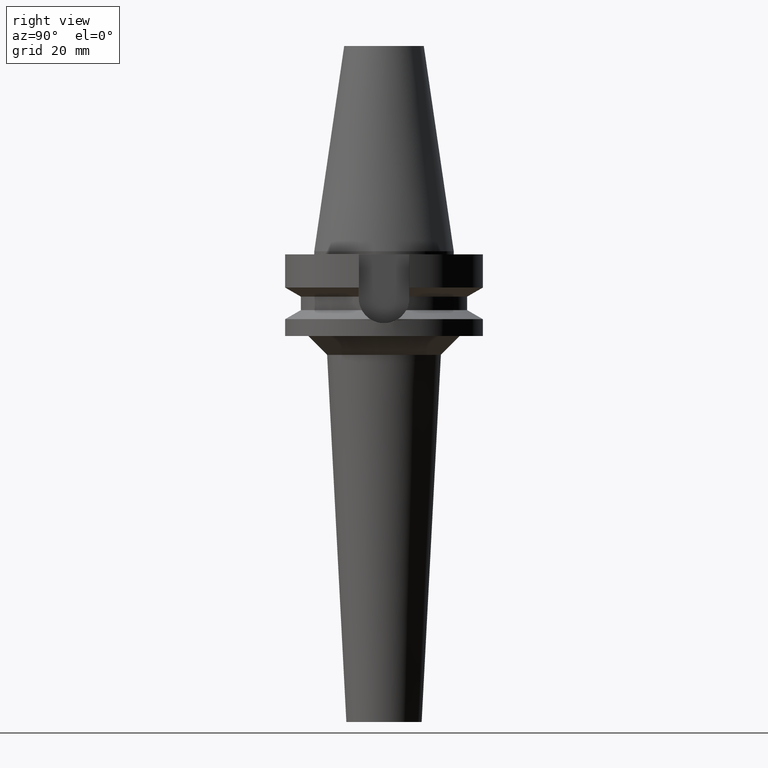
[diagram: clean part render]
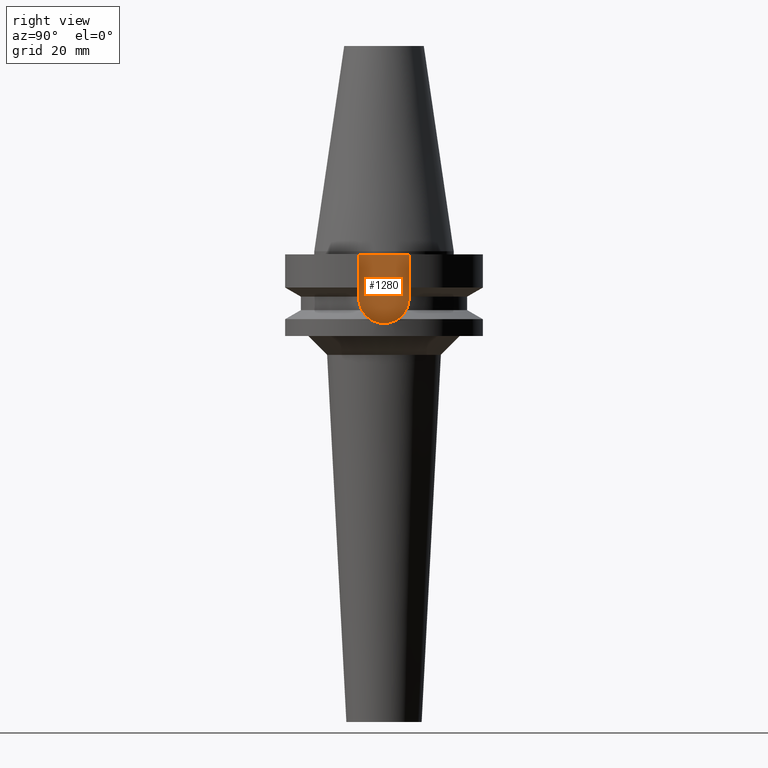
[diagram: same view with one face highlighted and labeled with its STEP entity id]
A machine part, right view. The second image highlights one B-rep face of the part: STEP entity #1280.
In plain terms, the highlighted planar face has unit normal (1, 0, 0).
Its self-contained STEP definition (entity closure, byte-faithful):
#124=DIRECTION('',(0.E0,-1.E0,0.E0));
#125=VECTOR('',#124,1.61E1);
#126=CARTESIAN_POINT('',(2.25E1,8.05E0,-1.E0));
#127=LINE('',#126,#125);
#307=DIRECTION('',(0.E0,0.E0,-1.E0));
#308=VECTOR('',#307,1.395E1);
#309=CARTESIAN_POINT('',(2.25E1,8.05E0,-1.E0));
#310=LINE('',#309,#308);
#314=CARTESIAN_POINT('',(2.25E1,0.E0,-1.495E1));
#315=DIRECTION('',(-1.E0,0.E0,0.E0));
#316=DIRECTION('',(0.E0,1.E0,0.E0));
#317=AXIS2_PLACEMENT_3D('',#314,#315,#316);
#322=CARTESIAN_POINT('',(2.25E1,0.E0,-1.495E1));
#323=DIRECTION('',(-1.E0,0.E0,0.E0));
#324=DIRECTION('',(0.E0,0.E0,-1.E0));
#325=AXIS2_PLACEMENT_3D('',#322,#323,#324);
#330=DIRECTION('',(0.E0,0.E0,1.E0));
#331=VECTOR('',#330,1.395E1);
#332=CARTESIAN_POINT('',(2.25E1,-8.05E0,-1.495E1));
#333=LINE('',#332,#331);
#977=CARTESIAN_POINT('',(2.25E1,-8.05E0,-1.495E1));
#978=VERTEX_POINT('',#977);
#979=CARTESIAN_POINT('',(2.25E1,0.E0,-2.3E1));
#980=VERTEX_POINT('',#979);
#981=CARTESIAN_POINT('',(2.25E1,8.05E0,-1.495E1));
#982=VERTEX_POINT('',#981);
#1029=CARTESIAN_POINT('',(2.25E1,8.05E0,-1.E0));
#1030=VERTEX_POINT('',#1029);
#1031=CARTESIAN_POINT('',(2.25E1,-8.05E0,-1.E0));
#1032=VERTEX_POINT('',#1031);
#1265=CARTESIAN_POINT('',(2.25E1,0.E0,0.E0));
#1266=DIRECTION('',(1.E0,0.E0,0.E0));
#1267=DIRECTION('',(0.E0,0.E0,-1.E0));
#1268=AXIS2_PLACEMENT_3D('',#1265,#1266,#1267);
#1269=PLANE('',#1268);
#1270=ORIENTED_EDGE('',*,*,#1142,.F.);
#1272=ORIENTED_EDGE('',*,*,#1271,.T.);
#1274=ORIENTED_EDGE('',*,*,#1273,.T.);
#1276=ORIENTED_EDGE('',*,*,#1275,.T.);
#1277=ORIENTED_EDGE('',*,*,#1258,.T.);
#1278=EDGE_LOOP('',(#1270,#1272,#1274,#1276,#1277));
#1279=FACE_OUTER_BOUND('',#1278,.F.);
#318=CIRCLE('',#317,8.05E0);
#326=CIRCLE('',#325,8.05E0);
#1142=EDGE_CURVE('',#1030,#1032,#127,.T.);
#1258=EDGE_CURVE('',#978,#1032,#333,.T.);
#1271=EDGE_CURVE('',#1030,#982,#310,.T.);
#1273=EDGE_CURVE('',#982,#980,#318,.T.);
#1275=EDGE_CURVE('',#980,#978,#326,.T.);
#1280=ADVANCED_FACE('',(#1279),#1269,.T.);